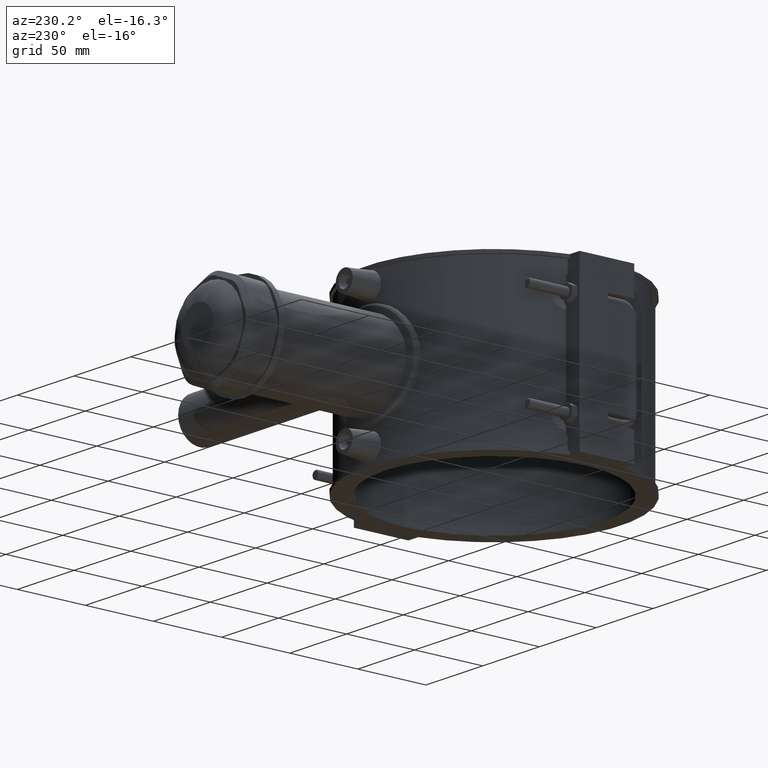
[diagram: clean part render]
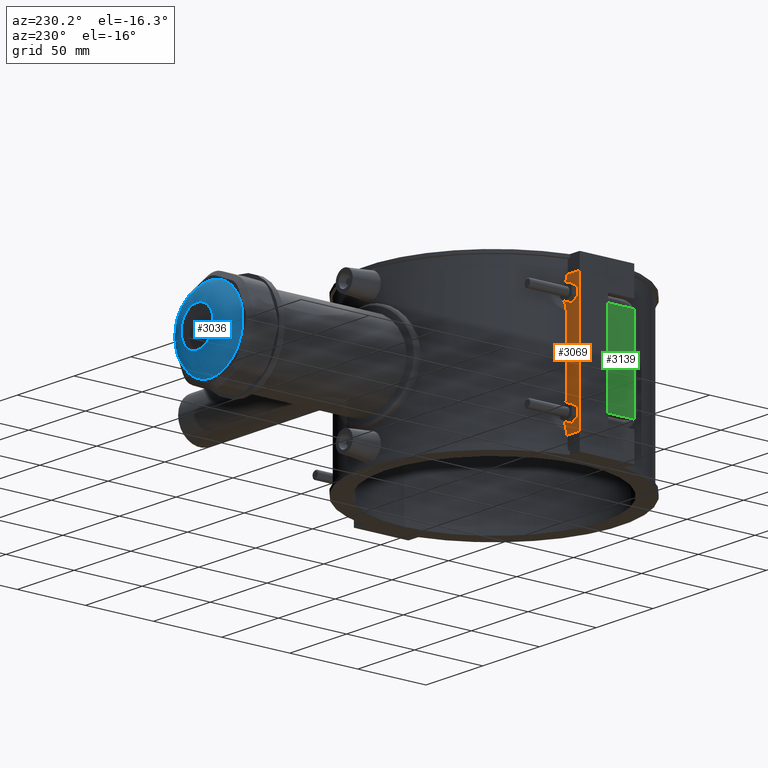
[diagram: same view with three faces highlighted in distinct colors, each labeled with its STEP entity id]
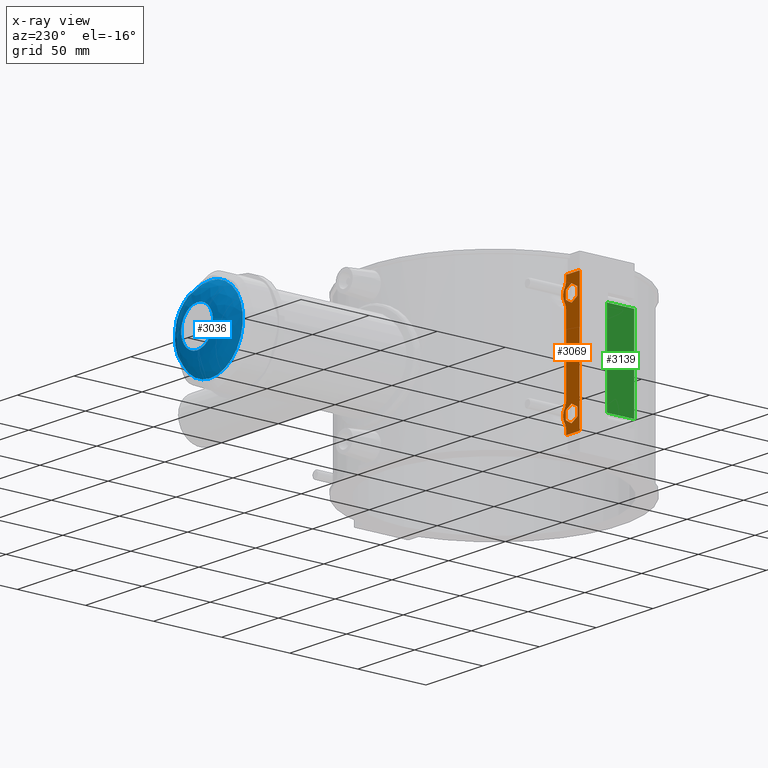
[diagram: x-ray of the same camera — body ghosted, the three highlighted faces saturated]
A machine part, auxiliary view with three faces highlighted in distinct colors.
The next image is the same camera in x-ray (body ghosted, the three faces saturated) — at least one of them is partly hidden behind the body in this view.
Their STEP definitions:

[orange] entity #3069 — the highlighted planar face has unit normal (0, -1, 0).
#97=LINE('',#4820,#376);
#98=LINE('',#4836,#377);
#99=LINE('',#4852,#378);
#148=LINE('',#5468,#427);
#149=LINE('',#5471,#428);
#153=LINE('',#5478,#432);
#154=LINE('',#5512,#433);
#155=LINE('',#5514,#434);
#156=LINE('',#5516,#435);
#157=LINE('',#5518,#436);
#158=LINE('',#5520,#437);
#159=LINE('',#5521,#438);
#160=LINE('',#5524,#439);
#161=LINE('',#5526,#440);
#162=LINE('',#5528,#441);
#163=LINE('',#5530,#442);
#164=LINE('',#5532,#443);
#165=LINE('',#5533,#444);
#376=VECTOR('',#3682,2.6837622247576);
#377=VECTOR('',#3683,52.5675244495152);
#378=VECTOR('',#3684,2.6837622247576);
#427=VECTOR('',#3803,11.7506901435285);
#428=VECTOR('',#3806,11.7506901435285);
#432=VECTOR('',#3812,94.4);
#433=VECTOR('',#3817,5.77350269189626);
#434=VECTOR('',#3818,5.77350269189626);
#435=VECTOR('',#3819,5.77350269189625);
#436=VECTOR('',#3820,5.77350269189626);
#437=VECTOR('',#3821,5.77350269189625);
#438=VECTOR('',#3822,5.77350269189626);
#439=VECTOR('',#3823,5.77350269189627);
#440=VECTOR('',#3824,5.77350269189626);
#441=VECTOR('',#3825,5.77350269189626);
#442=VECTOR('',#3826,5.77350269189626);
#443=VECTOR('',#3827,5.77350269189626);
#444=VECTOR('',#3828,5.77350269189624);
#630=PLANE('',#3302);
#760=CIRCLE('',#3303,7.5);
#761=CIRCLE('',#3304,7.5);
#827=FACE_BOUND('',#1124,.T.);
#828=FACE_BOUND('',#1125,.T.);
#927=FACE_OUTER_BOUND('',#1123,.T.);
#1123=EDGE_LOOP('',(#2384,#2385,#2386,#2387,#2388,#2389,#2390,#2391,#2392,
#2393,#2394,#2395));
#1124=EDGE_LOOP('',(#2396,#2397,#2398,#2399,#2400,#2401));
#1125=EDGE_LOOP('',(#2402,#2403,#2404,#2405,#2406,#2407));
#1302=B_SPLINE_CURVE_WITH_KNOTS('',3,(#5480,#5481,#5482,#5483,#5484,#5485),
 .UNSPECIFIED.,.F.,.F.,(4,2,4),(-0.533497382435612,-0.272762325702171,0.),
 .UNSPECIFIED.);
#1303=B_SPLINE_CURVE_WITH_KNOTS('',3,(#5488,#5489,#5490,#5491,#5492,#5493),
 .UNSPECIFIED.,.F.,.F.,(4,2,4),(-0.534354471233985,-0.258901785044101,0.),
 .UNSPECIFIED.);
#1304=B_SPLINE_CURVE_WITH_KNOTS('',3,(#5495,#5496,#5497,#5498,#5499,#5500),
 .UNSPECIFIED.,.F.,.F.,(4,2,4),(-0.533497382435602,-0.272762325705481,0.),
 .UNSPECIFIED.);
#1305=B_SPLINE_CURVE_WITH_KNOTS('',3,(#5503,#5504,#5505,#5506,#5507,#5508,
#5509),.UNSPECIFIED.,.F.,.F.,(4,3,4),(-0.534354471234062,-0.258901785045464,
0.),.UNSPECIFIED.);
#1399=VERTEX_POINT('',#4817);
#1400=VERTEX_POINT('',#4819);
#1401=VERTEX_POINT('',#4821);
#1402=VERTEX_POINT('',#4835);
#1403=VERTEX_POINT('',#4837);
#1404=VERTEX_POINT('',#4851);
#1467=VERTEX_POINT('',#5466);
#1468=VERTEX_POINT('',#5470);
#1471=VERTEX_POINT('',#5479);
#1472=VERTEX_POINT('',#5486);
#1473=VERTEX_POINT('',#5494);
#1474=VERTEX_POINT('',#5501);
#1475=VERTEX_POINT('',#5510);
#1476=VERTEX_POINT('',#5511);
#1477=VERTEX_POINT('',#5513);
#1478=VERTEX_POINT('',#5515);
#1479=VERTEX_POINT('',#5517);
#1480=VERTEX_POINT('',#5519);
#1481=VERTEX_POINT('',#5522);
#1482=VERTEX_POINT('',#5523);
#1483=VERTEX_POINT('',#5525);
#1484=VERTEX_POINT('',#5527);
#1485=VERTEX_POINT('',#5529);
#1486=VERTEX_POINT('',#5531);
#1727=EDGE_CURVE('',#1399,#1400,#97,.T.);
#1729=EDGE_CURVE('',#1401,#1402,#98,.T.);
#1731=EDGE_CURVE('',#1403,#1404,#99,.T.);
#1811=EDGE_CURVE('',#1399,#1467,#148,.T.);
#1812=EDGE_CURVE('',#1468,#1404,#149,.T.);
#1816=EDGE_CURVE('',#1467,#1468,#153,.T.);
#1817=EDGE_CURVE('',#1471,#1403,#1302,.T.);
#1818=EDGE_CURVE('',#1472,#1471,#760,.T.);
#1819=EDGE_CURVE('',#1402,#1472,#1303,.T.);
#1820=EDGE_CURVE('',#1473,#1401,#1304,.T.);
#1821=EDGE_CURVE('',#1474,#1473,#761,.T.);
#1822=EDGE_CURVE('',#1400,#1474,#1305,.T.);
#1823=EDGE_CURVE('',#1475,#1476,#154,.T.);
#1824=EDGE_CURVE('',#1477,#1475,#155,.T.);
#1825=EDGE_CURVE('',#1478,#1477,#156,.T.);
#1826=EDGE_CURVE('',#1479,#1478,#157,.T.);
#1827=EDGE_CURVE('',#1480,#1479,#158,.T.);
#1828=EDGE_CURVE('',#1476,#1480,#159,.T.);
#1829=EDGE_CURVE('',#1481,#1482,#160,.T.);
#1830=EDGE_CURVE('',#1483,#1481,#161,.T.);
#1831=EDGE_CURVE('',#1484,#1483,#162,.T.);
#1832=EDGE_CURVE('',#1485,#1484,#163,.T.);
#1833=EDGE_CURVE('',#1486,#1485,#164,.T.);
#1834=EDGE_CURVE('',#1482,#1486,#165,.T.);
#2384=ORIENTED_EDGE('',*,*,#1727,.F.);
#2385=ORIENTED_EDGE('',*,*,#1811,.T.);
#2386=ORIENTED_EDGE('',*,*,#1816,.T.);
#2387=ORIENTED_EDGE('',*,*,#1812,.T.);
#2388=ORIENTED_EDGE('',*,*,#1731,.F.);
#2389=ORIENTED_EDGE('',*,*,#1817,.F.);
#2390=ORIENTED_EDGE('',*,*,#1818,.F.);
#2391=ORIENTED_EDGE('',*,*,#1819,.F.);
#2392=ORIENTED_EDGE('',*,*,#1729,.F.);
#2393=ORIENTED_EDGE('',*,*,#1820,.F.);
#2394=ORIENTED_EDGE('',*,*,#1821,.F.);
#2395=ORIENTED_EDGE('',*,*,#1822,.F.);
#2396=ORIENTED_EDGE('',*,*,#1823,.F.);
#2397=ORIENTED_EDGE('',*,*,#1824,.F.);
#2398=ORIENTED_EDGE('',*,*,#1825,.F.);
#2399=ORIENTED_EDGE('',*,*,#1826,.F.);
#2400=ORIENTED_EDGE('',*,*,#1827,.F.);
#2401=ORIENTED_EDGE('',*,*,#1828,.F.);
#2402=ORIENTED_EDGE('',*,*,#1829,.F.);
#2403=ORIENTED_EDGE('',*,*,#1830,.F.);
#2404=ORIENTED_EDGE('',*,*,#1831,.F.);
#2405=ORIENTED_EDGE('',*,*,#1832,.F.);
#2406=ORIENTED_EDGE('',*,*,#1833,.F.);
#2407=ORIENTED_EDGE('',*,*,#1834,.F.);
#3069=ADVANCED_FACE('',(#927,#827,#828),#630,.F.);
#3302=AXIS2_PLACEMENT_3D('',#5477,#3810,#3811);
#3303=AXIS2_PLACEMENT_3D('',#5487,#3813,#3814);
#3304=AXIS2_PLACEMENT_3D('',#5502,#3815,#3816);
#3682=DIRECTION('',(0.,0.,1.));
#3683=DIRECTION('',(0.,0.,1.));
#3684=DIRECTION('',(0.,0.,1.));
#3803=DIRECTION('',(-1.,0.,0.));
#3806=DIRECTION('',(1.,0.,0.));
#3810=DIRECTION('center_axis',(0.,-1.,0.));
#3811=DIRECTION('ref_axis',(1.,0.,0.));
#3812=DIRECTION('',(0.,0.,1.));
#3813=DIRECTION('center_axis',(0.,-1.,0.));
#3814=DIRECTION('ref_axis',(1.,0.,0.));
#3815=DIRECTION('center_axis',(0.,-1.,0.));
#3816=DIRECTION('ref_axis',(1.,0.,0.));
#3817=DIRECTION('',(-0.866025403784439,0.,0.5));
#3818=DIRECTION('',(-0.866025403784438,0.,-0.5));
#3819=DIRECTION('',(0.,0.,-1.));
#3820=DIRECTION('',(0.866025403784439,0.,-0.5));
#3821=DIRECTION('',(0.866025403784439,0.,0.499999999999999));
#3822=DIRECTION('',(0.,0.,1.));
#3823=DIRECTION('',(-0.866025403784439,0.,-0.499999999999999));
#3824=DIRECTION('',(0.,0.,-1.));
#3825=DIRECTION('',(0.866025403784438,0.,-0.5));
#3826=DIRECTION('',(0.866025403784438,0.,0.5));
#3827=DIRECTION('',(0.,0.,1.));
#3828=DIRECTION('',(-0.866025403784438,0.,0.500000000000002));
#4817=CARTESIAN_POINT('',(-88.7493098564715,21.0000000000001,-47.2));
#4819=CARTESIAN_POINT('',(-88.7493098564717,20.9999999999999,-44.5162377752424));
#4820=CARTESIAN_POINT('',(-88.7493098564715,21.0000000000001,0.));
#4821=CARTESIAN_POINT('',(-88.7493098564717,20.9999999999999,-26.2837622247576));
#4835=CARTESIAN_POINT('',(-88.7493098564717,20.9999999999999,26.2837622247576));
#4836=CARTESIAN_POINT('',(-88.7493098564715,21.0000000000001,0.));
#4837=CARTESIAN_POINT('',(-88.7493098564717,20.9999999999999,44.5162377752424));
#4851=CARTESIAN_POINT('',(-88.7493098564715,21.0000000000001,47.2));
#4852=CARTESIAN_POINT('',(-88.7493098564715,21.0000000000001,0.));
#5466=CARTESIAN_POINT('',(-100.5,21.0000000000001,-47.2));
#5468=CARTESIAN_POINT('',(-100.5,21.0000000000001,-47.2));
#5470=CARTESIAN_POINT('',(-100.5,21.0000000000001,47.2));
#5471=CARTESIAN_POINT('',(-100.5,21.0000000000001,47.2));
#5477=CARTESIAN_POINT('Origin',(-100.5,21.0000000000001,0.));
#5478=CARTESIAN_POINT('',(-100.5,21.0000000000001,0.));
#5479=CARTESIAN_POINT('',(-87.212652661366,21.,39.4889195936546));
#5480=CARTESIAN_POINT('Ctrl Pts',(-87.212652661366,21.0000000000001,39.4889195936545));
#5481=CARTESIAN_POINT('Ctrl Pts',(-87.6872452137926,21.0000000000001,40.2186791678133));
#5482=CARTESIAN_POINT('Ctrl Pts',(-88.0655889219176,21.0000000001883,41.0073462575877));
#5483=CARTESIAN_POINT('Ctrl Pts',(-88.6035581883184,21.0000000001883,42.7041164757468));
#5484=CARTESIAN_POINT('Ctrl Pts',(-88.7493098564715,21.0000000000001,43.6070300229017));
#5485=CARTESIAN_POINT('Ctrl Pts',(-88.7493098564715,21.0000000000001,44.5162377752423));
#5486=CARTESIAN_POINT('',(-87.212652661366,21.,31.3110804063454));
#5487=CARTESIAN_POINT('Origin',(-93.5,21.0000000000001,35.4));
#5488=CARTESIAN_POINT('Ctrl Pts',(-88.7493098564715,21.0000000000001,26.2837622247577));
#5489=CARTESIAN_POINT('Ctrl Pts',(-88.7493098564715,21.0000000000001,27.2004639830749));
#5490=CARTESIAN_POINT('Ctrl Pts',(-88.6011499200903,20.9999999990325,28.1107150297105));
#5491=CARTESIAN_POINT('Ctrl Pts',(-88.0590768202759,20.9999999990325,29.8062187526795));
#5492=CARTESIAN_POINT('Ctrl Pts',(-87.6831542532322,21.0000000000001,30.5876113178279));
#5493=CARTESIAN_POINT('Ctrl Pts',(-87.212652661366,21.0000000000001,31.3110804063455));
#5494=CARTESIAN_POINT('',(-87.212652661366,21.,-31.3110804063454));
#5495=CARTESIAN_POINT('Ctrl Pts',(-87.212652661366,21.0000000000001,-31.3110804063455));
#5496=CARTESIAN_POINT('Ctrl Pts',(-87.6872452137866,21.0000000000001,-30.581320832196));
#5497=CARTESIAN_POINT('Ctrl Pts',(-88.065588921908,21.0000000001883,-29.7926537424323));
#5498=CARTESIAN_POINT('Ctrl Pts',(-88.6035581883148,21.0000000001883,-28.095883524275));
#5499=CARTESIAN_POINT('Ctrl Pts',(-88.7493098564715,21.0000000000001,-27.1929699771093));
#5500=CARTESIAN_POINT('Ctrl Pts',(-88.7493098564715,21.0000000000001,-26.2837622247577));
#5501=CARTESIAN_POINT('',(-87.212652661366,21.,-39.4889195936546));
#5502=CARTESIAN_POINT('Origin',(-93.5,21.0000000000001,-35.4));
#5503=CARTESIAN_POINT('Ctrl Pts',(-88.7493098564715,21.0000000000001,-44.5162377752423));
#5504=CARTESIAN_POINT('Ctrl Pts',(-88.7493098564715,21.0000000000001,-43.5995360169295));
#5505=CARTESIAN_POINT('Ctrl Pts',(-88.5973483236153,20.9994884388685,-42.6904824890634));
#5506=CARTESIAN_POINT('Ctrl Pts',(-88.3180797064498,20.9994668798827,-41.8165180111418));
#5507=CARTESIAN_POINT('Ctrl Pts',(-88.0555912751631,20.9994466162941,-40.9950667247845));
#5508=CARTESIAN_POINT('Ctrl Pts',(-87.6830636891124,20.9997297489324,-40.2125438272774));
#5509=CARTESIAN_POINT('Ctrl Pts',(-87.2127862750376,20.9994720228447,-39.4889139196634));
#5510=CARTESIAN_POINT('',(-93.5000000000001,21.0000000000001,29.6264973081037));
#5511=CARTESIAN_POINT('',(-98.5000000000001,21.0000000000001,32.5132486540519));
#5512=CARTESIAN_POINT('',(-92.2106751765077,21.0000000000001,28.8821052741876));
#5513=CARTESIAN_POINT('',(-88.5000000000001,21.0000000000001,32.5132486540519));
#5514=CARTESIAN_POINT('',(-102.539324823492,21.0000000000001,24.407640687968));
#5515=CARTESIAN_POINT('',(-88.5000000000001,21.0000000000001,38.2867513459481));
#5516=CARTESIAN_POINT('',(-88.5000000000001,21.0000000000001,16.2566243270259));
#5517=CARTESIAN_POINT('',(-93.5000000000001,21.0000000000001,41.1735026918963));
#5518=CARTESIAN_POINT('',(-84.7106751765077,21.0000000000001,36.0989836390579));
#5519=CARTESIAN_POINT('',(-98.5000000000001,21.0000000000001,38.2867513459481));
#5520=CARTESIAN_POINT('',(-105.039324823492,21.0000000000001,34.5112703987865));
#5521=CARTESIAN_POINT('',(-98.5000000000001,21.0000000000001,19.1433756729741));
#5522=CARTESIAN_POINT('',(-88.5000000000001,21.0000000000001,-38.2867513459481));
#5523=CARTESIAN_POINT('',(-93.5000000000001,21.0000000000001,-41.1735026918963));
#5524=CARTESIAN_POINT('',(-87.2106751765078,21.0000000000001,-37.542359312032));
#5525=CARTESIAN_POINT('',(-88.5000000000001,21.0000000000001,-32.5132486540519));
#5526=CARTESIAN_POINT('',(-88.5000000000001,21.0000000000001,-19.1433756729741));
#5527=CARTESIAN_POINT('',(-93.5000000000001,21.0000000000001,-29.6264973081037));
#5528=CARTESIAN_POINT('',(-100.039324823492,21.0000000000001,-25.8510163609421));
#5529=CARTESIAN_POINT('',(-98.5000000000001,21.0000000000001,-32.5132486540519));
#5530=CARTESIAN_POINT('',(-89.7106751765077,21.0000000000001,-27.4387296012135));
#5531=CARTESIAN_POINT('',(-98.5000000000001,21.0000000000001,-38.2867513459481));
#5532=CARTESIAN_POINT('',(-98.5000000000001,21.0000000000001,-16.2566243270259));
#5533=CARTESIAN_POINT('',(-107.539324823492,21.0000000000001,-33.0678947258124));

[blue] entity #3036 — the highlighted face is a freeform B-spline surface patch.
#24=(
BOUNDED_CURVE()
B_SPLINE_CURVE(2,(#4770,#4771,#4772),.UNSPECIFIED.,.F.,.F.)
B_SPLINE_CURVE_WITH_KNOTS((3,3),(-1.5707963267949,-0.407428895947171),
 .UNSPECIFIED.)
CURVE()
GEOMETRIC_REPRESENTATION_ITEM()
RATIONAL_B_SPLINE_CURVE((1.,0.835538748353422,1.))
REPRESENTATION_ITEM('')
);
#25=(
BOUNDED_SURFACE()
B_SPLINE_SURFACE(2,2,((#4741,#4742,#4743,#4744,#4745,#4746,#4747,#4748,
#4749),(#4750,#4751,#4752,#4753,#4754,#4755,#4756,#4757,#4758),(#4759,#4760,
#4761,#4762,#4763,#4764,#4765,#4766,#4767)),.UNSPECIFIED.,.F.,.T.,.F.)
B_SPLINE_SURFACE_WITH_KNOTS((3,3),(3,2,2,2,3),(0.407428895947171,1.5707963267949),
(-3.14159265358979,-1.5707963267949,0.,1.5707963267949,3.14159265358979),
 .UNSPECIFIED.)
GEOMETRIC_REPRESENTATION_ITEM()
RATIONAL_B_SPLINE_SURFACE(((1.,0.707106781186548,1.,0.707106781186548,1.,
0.707106781186548,1.,0.707106781186548,1.),(0.835538748353422,0.590815114904825,
0.835538748353422,0.590815114904825,0.835538748353422,0.590815114904825,
0.835538748353422,0.590815114904825,0.835538748353422),(1.,0.707106781186548,
1.,0.707106781186548,1.,0.707106781186548,1.,0.707106781186548,1.)))
REPRESENTATION_ITEM('')
SURFACE()
);
#732=CIRCLE('',#3243,28.8);
#733=CIRCLE('',#3244,14.1097174976109);
#894=FACE_OUTER_BOUND('',#1082,.T.);
#1082=EDGE_LOOP('',(#2195,#2196,#2197,#2198));
#1385=VERTEX_POINT('',#4739);
#1386=VERTEX_POINT('',#4768);
#1704=EDGE_CURVE('',#1385,#1385,#732,.T.);
#1705=EDGE_CURVE('',#1386,#1386,#733,.T.);
#1706=EDGE_CURVE('',#1386,#1385,#24,.T.);
#2195=ORIENTED_EDGE('',*,*,#1705,.T.);
#2196=ORIENTED_EDGE('',*,*,#1706,.T.);
#2197=ORIENTED_EDGE('',*,*,#1704,.T.);
#2198=ORIENTED_EDGE('',*,*,#1706,.F.);
#3036=ADVANCED_FACE('',(#894),#25,.T.);
#3243=AXIS2_PLACEMENT_3D('',#4740,#3624,#3625);
#3244=AXIS2_PLACEMENT_3D('',#4769,#3626,#3627);
#3624=DIRECTION('center_axis',(0.,1.,3.06161699786838E-16));
#3625=DIRECTION('ref_axis',(1.,0.,0.));
#3626=DIRECTION('center_axis',(0.,-1.,-3.06161699786838E-16));
#3627=DIRECTION('ref_axis',(-6.12323399573677E-17,-3.14739972593539E-16,
1.));
#4739=CARTESIAN_POINT('',(5.29047417231657E-15,208.34,-28.8));
#4740=CARTESIAN_POINT('Origin',(0.,208.34,3.92927925506428E-14));
#4741=CARTESIAN_POINT('Ctrl Pts',(1.76349139077219E-15,208.34,-28.8));
#4742=CARTESIAN_POINT('Ctrl Pts',(28.8,208.34,-28.8));
#4743=CARTESIAN_POINT('Ctrl Pts',(28.8,208.34,4.1056283941415E-14));
#4744=CARTESIAN_POINT('Ctrl Pts',(28.8,208.34,28.8));
#4745=CARTESIAN_POINT('Ctrl Pts',(-1.76349139077219E-15,208.34,28.8));
#4746=CARTESIAN_POINT('Ctrl Pts',(-28.8,208.34,28.8));
#4747=CARTESIAN_POINT('Ctrl Pts',(-28.8,208.34,3.75293011598707E-14));
#4748=CARTESIAN_POINT('Ctrl Pts',(-28.8,208.34,-28.8));
#4749=CARTESIAN_POINT('Ctrl Pts',(1.76349139077219E-15,208.34,-28.8));
#4750=CARTESIAN_POINT('Ctrl Pts',(1.50821121350704E-15,218.,-24.6309583229566));
#4751=CARTESIAN_POINT('Ctrl Pts',(24.6309583229567,218.,-24.6309583229566));
#4752=CARTESIAN_POINT('Ctrl Pts',(24.6309583229567,218.,4.37585257840907E-14));
#4753=CARTESIAN_POINT('Ctrl Pts',(24.6309583229567,218.,24.6309583229567));
#4754=CARTESIAN_POINT('Ctrl Pts',(-1.50821121350704E-15,218.,24.6309583229567));
#4755=CARTESIAN_POINT('Ctrl Pts',(-24.6309583229567,218.,24.6309583229567));
#4756=CARTESIAN_POINT('Ctrl Pts',(-24.6309583229567,218.,4.07421033570767E-14));
#4757=CARTESIAN_POINT('Ctrl Pts',(-24.6309583229567,218.,-24.6309583229566));
#4758=CARTESIAN_POINT('Ctrl Pts',(1.50821121350704E-15,218.,-24.6309583229566));
#4759=CARTESIAN_POINT('Ctrl Pts',(8.63971018516129E-16,218.,-14.1097174976108));
#4760=CARTESIAN_POINT('Ctrl Pts',(14.1097174976109,218.,-14.1097174976108));
#4761=CARTESIAN_POINT('Ctrl Pts',(14.1097174976109,218.,4.31142855890998E-14));
#4762=CARTESIAN_POINT('Ctrl Pts',(14.1097174976109,218.,14.1097174976109));
#4763=CARTESIAN_POINT('Ctrl Pts',(-8.63971018516129E-16,218.,14.1097174976109));
#4764=CARTESIAN_POINT('Ctrl Pts',(-14.1097174976109,218.,14.1097174976109));
#4765=CARTESIAN_POINT('Ctrl Pts',(-14.1097174976109,218.,4.13863435520676E-14));
#4766=CARTESIAN_POINT('Ctrl Pts',(-14.1097174976109,218.,-14.1097174976108));
#4767=CARTESIAN_POINT('Ctrl Pts',(8.63971018516129E-16,218.,-14.1097174976108));
#4768=CARTESIAN_POINT('',(2.59191305554839E-15,218.,-14.1097174976108));
#4769=CARTESIAN_POINT('Origin',(0.,218.,4.22503145705837E-14));
#4770=CARTESIAN_POINT('Ctrl Pts',(8.63971018516129E-16,218.,-14.1097174976108));
#4771=CARTESIAN_POINT('Ctrl Pts',(1.50821121350704E-15,218.,-24.6309583229566));
#4772=CARTESIAN_POINT('Ctrl Pts',(1.76349139077219E-15,208.34,-28.8));

[green] entity #3139 — the highlighted planar face has unit normal (-1, 0, 0).
#243=LINE('',#6091,#522);
#246=LINE('',#6096,#525);
#248=LINE('',#6100,#527);
#263=LINE('',#6132,#542);
#522=VECTOR('',#4076,19.95);
#525=VECTOR('',#4081,64.8);
#527=VECTOR('',#4085,19.95);
#542=VECTOR('',#4120,64.8);
#676=PLANE('',#3401);
#997=FACE_OUTER_BOUND('',#1215,.T.);
#1215=EDGE_LOOP('',(#2698,#2699,#2700,#2701));
#1567=VERTEX_POINT('',#6088);
#1568=VERTEX_POINT('',#6090);
#1569=VERTEX_POINT('',#6094);
#1570=VERTEX_POINT('',#6098);
#1955=EDGE_CURVE('',#1568,#1567,#243,.T.);
#1958=EDGE_CURVE('',#1567,#1569,#246,.T.);
#1960=EDGE_CURVE('',#1569,#1570,#248,.T.);
#1977=EDGE_CURVE('',#1570,#1568,#263,.T.);
#2698=ORIENTED_EDGE('',*,*,#1960,.T.);
#2699=ORIENTED_EDGE('',*,*,#1977,.T.);
#2700=ORIENTED_EDGE('',*,*,#1955,.T.);
#2701=ORIENTED_EDGE('',*,*,#1958,.T.);
#3139=ADVANCED_FACE('',(#997),#676,.T.);
#3401=AXIS2_PLACEMENT_3D('',#6131,#4118,#4119);
#4076=DIRECTION('',(0.,-1.,0.));
#4081=DIRECTION('',(0.,0.,1.));
#4085=DIRECTION('',(0.,1.,0.));
#4118=DIRECTION('center_axis',(-1.,0.,0.));
#4119=DIRECTION('ref_axis',(0.,-1.,0.));
#4120=DIRECTION('',(0.,0.,-1.));
#6088=CARTESIAN_POINT('',(-99.5,-20.,-32.4));
#6090=CARTESIAN_POINT('',(-99.5,-0.0500000000000078,-32.4));
#6091=CARTESIAN_POINT('',(-99.5,1.11022302462516E-14,-32.4));
#6094=CARTESIAN_POINT('',(-99.5,-20.,32.4));
#6096=CARTESIAN_POINT('',(-99.5,-20.,0.));
#6098=CARTESIAN_POINT('',(-99.5,-0.0500000000000078,32.4));
#6100=CARTESIAN_POINT('',(-99.5,1.11022302462516E-14,32.4));
#6131=CARTESIAN_POINT('Origin',(-99.5,20.,0.));
#6132=CARTESIAN_POINT('',(-99.5,-0.0500000000000078,-29.5));